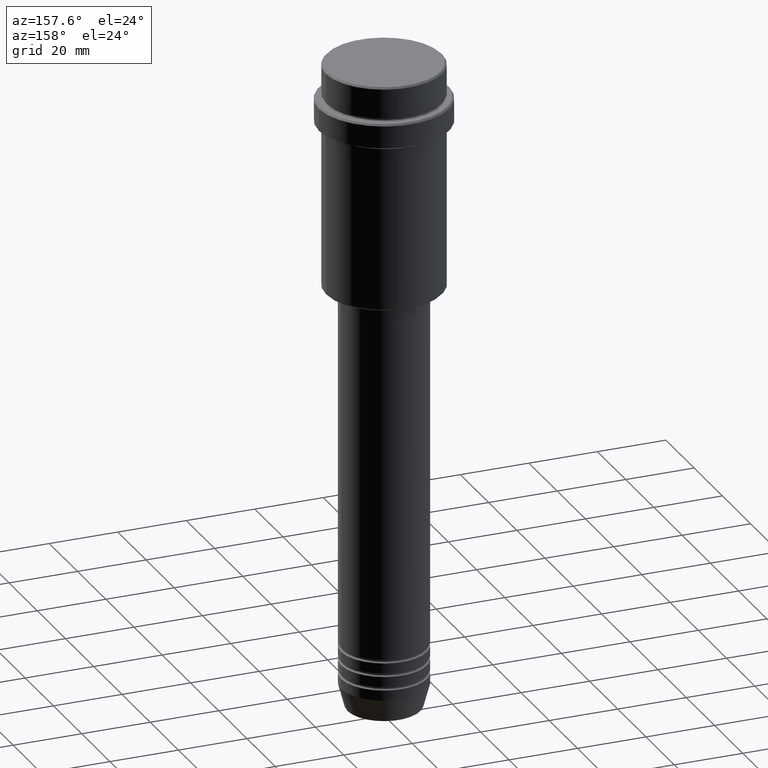
[diagram: clean part render]
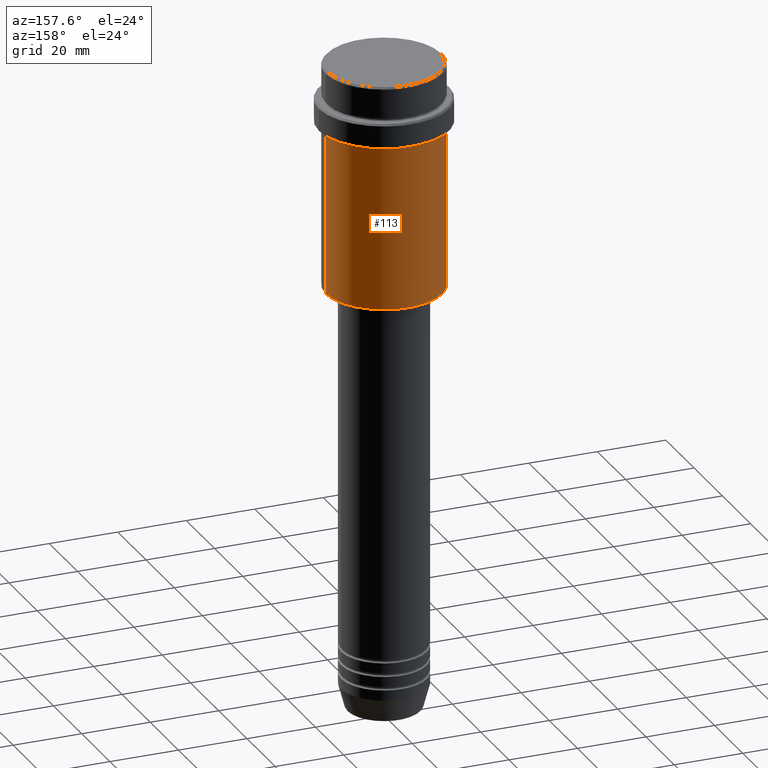
[diagram: same view with one face highlighted and labeled with its STEP entity id]
A machine part, auxiliary view. The second image highlights one B-rep face of the part: STEP entity #113.
In plain terms, the highlighted cylindrical surface (partial cylindrical patch) has radius 17 mm, axis along (-0, -0, 1).
Its self-contained STEP definition (entity closure, byte-faithful):
#95 = CIRCLE ( 'NONE', #1296, 16.99999999999997868 ) ;
#101 = VECTOR ( 'NONE', #403, 1000.000000000000000 ) ;
#111 = DIRECTION ( 'NONE',  ( -0.000000000000000000, -0.000000000000000000, 1.000000000000000000 ) ) ;
#113 = ADVANCED_FACE ( 'NONE', ( #716 ), #1261, .T. ) ;
#152 = ORIENTED_EDGE ( 'NONE', *, *, #1099, .T. ) ;
#164 = DIRECTION ( 'NONE',  ( -0.000000000000000000, -0.000000000000000000, 1.000000000000000000 ) ) ;
#177 = EDGE_CURVE ( 'NONE', #1132, #339, #515, .T. ) ;
#335 = CARTESIAN_POINT ( 'NONE',  ( 0.000000000000000000, 0.000000000000000000, -65.50000000000000000 ) ) ;
#339 = VERTEX_POINT ( 'NONE', #1290 ) ;
#357 = ORIENTED_EDGE ( 'NONE', *, *, #177, .T. ) ;
#380 = CARTESIAN_POINT ( 'NONE',  ( 0.000000000000000000, 0.000000000000000000, 0.000000000000000000 ) ) ;
#403 = DIRECTION ( 'NONE',  ( -0.000000000000000000, -0.000000000000000000, 1.000000000000000000 ) ) ;
#405 = EDGE_CURVE ( 'NONE', #1295, #864, #677, .T. ) ;
#409 = DIRECTION ( 'NONE',  ( -1.000000000000000000, 0.000000000000000000, 0.000000000000000000 ) ) ;
#454 = CARTESIAN_POINT ( 'NONE',  ( 16.99999999999998934, 0.000000000000000000, -65.50000000000000000 ) ) ;
#493 = EDGE_CURVE ( 'NONE', #864, #339, #95, .T. ) ;
#515 = LINE ( 'NONE', #847, #101 ) ;
#546 = EDGE_LOOP ( 'NONE', ( #152, #357, #776, #658 ) ) ;
#590 = DIRECTION ( 'NONE',  ( 1.000000000000000000, 0.000000000000000000, 0.000000000000000000 ) ) ;
#658 = ORIENTED_EDGE ( 'NONE', *, *, #405, .F. ) ;
#677 = LINE ( 'NONE', #1154, #1207 ) ;
#716 = FACE_OUTER_BOUND ( 'NONE', #546, .T. ) ;
#742 = DIRECTION ( 'NONE',  ( -0.000000000000000000, -0.000000000000000000, 1.000000000000000000 ) ) ;
#749 = CARTESIAN_POINT ( 'NONE',  ( 0.000000000000000000, 0.000000000000000000, -18.00000000000000711 ) ) ;
#776 = ORIENTED_EDGE ( 'NONE', *, *, #493, .F. ) ;
#792 = DIRECTION ( 'NONE',  ( -0.000000000000000000, -0.000000000000000000, 1.000000000000000000 ) ) ;
#847 = CARTESIAN_POINT ( 'NONE',  ( -16.99999999999998934, 2.081899558550499491E-15, 0.000000000000000000 ) ) ;
#864 = VERTEX_POINT ( 'NONE', #1273 ) ;
#934 = CIRCLE ( 'NONE', #1298, 16.99999999999998934 ) ;
#1099 = EDGE_CURVE ( 'NONE', #1295, #1132, #934, .T. ) ;
#1111 = DIRECTION ( 'NONE',  ( 1.000000000000000000, 0.000000000000000000, 0.000000000000000000 ) ) ;
#1123 = CARTESIAN_POINT ( 'NONE',  ( -16.99999999999998934, 2.081899558550499491E-15, -65.50000000000000000 ) ) ;
#1132 = VERTEX_POINT ( 'NONE', #1123 ) ;
#1154 = CARTESIAN_POINT ( 'NONE',  ( 16.99999999999998934, 0.000000000000000000, 0.000000000000000000 ) ) ;
#1166 = AXIS2_PLACEMENT_3D ( 'NONE', #380, #164, #590 ) ;
#1207 = VECTOR ( 'NONE', #792, 1000.000000000000000 ) ;
#1261 = CYLINDRICAL_SURFACE ( 'NONE', #1166, 16.99999999999998934 ) ;
#1273 = CARTESIAN_POINT ( 'NONE',  ( 16.99999999999997868, 0.000000000000000000, -18.00000000000000711 ) ) ;
#1290 = CARTESIAN_POINT ( 'NONE',  ( -16.99999999999997868, 2.081899558550498702E-15, -18.00000000000000711 ) ) ;
#1295 = VERTEX_POINT ( 'NONE', #454 ) ;
#1296 = AXIS2_PLACEMENT_3D ( 'NONE', #749, #742, #1111 ) ;
#1298 = AXIS2_PLACEMENT_3D ( 'NONE', #335, #111, #409 ) ;